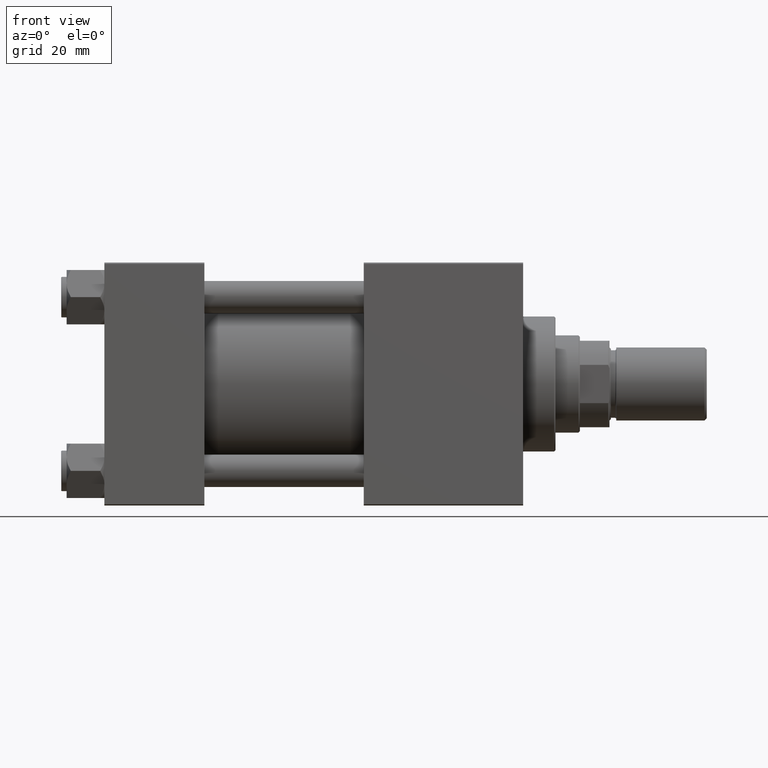
[diagram: clean part render]
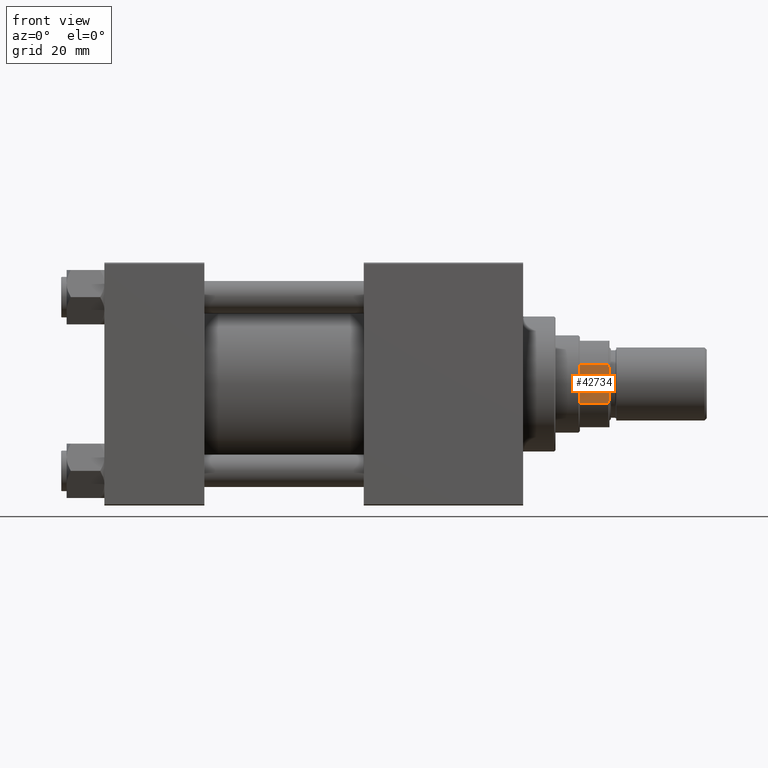
[diagram: same view with one face highlighted and labeled with its STEP entity id]
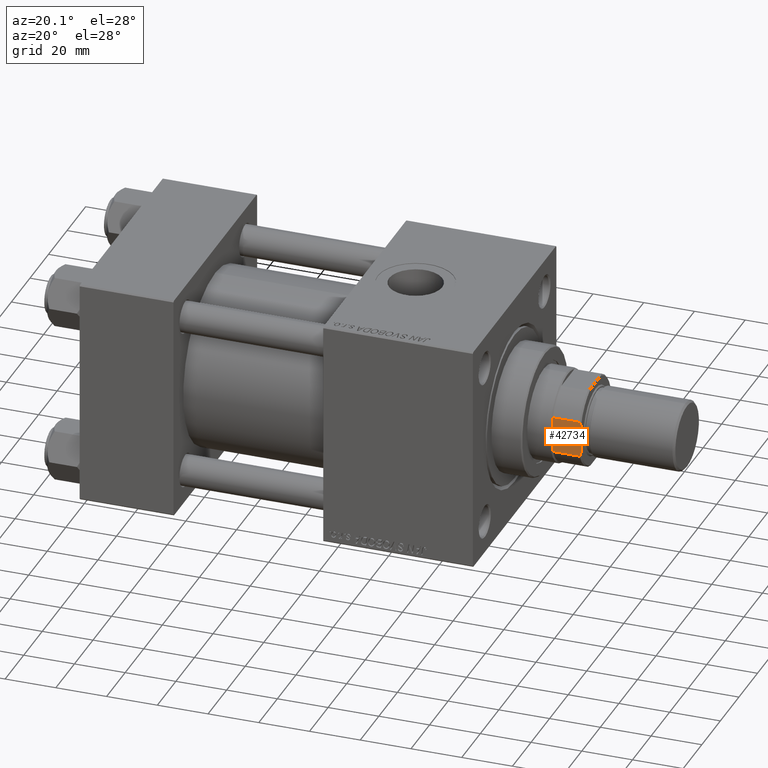
[diagram: same view with one face highlighted and labeled with its STEP entity id]
A machine part, front view. The second image highlights one B-rep face of the part: STEP entity #42734.
A second angle (auxiliary view) of the same face is appended — the face is thin or edge-on in the first view.
In plain terms, the highlighted planar face has unit normal (0, 1, 0).
Its self-contained STEP definition (entity closure, byte-faithful):
#720 = B_SPLINE_CURVE_WITH_KNOTS ( 'NONE', 3,
 ( #11576, #4153, #12341, #35437 ),
 .UNSPECIFIED., .F., .F.,
 ( 4, 4 ),
 ( 0.000000000000000000, 0.001434143729550888804 ),
 .UNSPECIFIED. ) ;
#4153 = CARTESIAN_POINT ( 'NONE',  ( -6.645462757301175749, 16.00000000000000000, 149.6795515649600361 ) ) ;
#5225 = CARTESIAN_POINT ( 'NONE',  ( -5.744562646538198258, 16.00000000000000000, 150.0000000000000284 ) ) ;
#5580 = CARTESIAN_POINT ( 'NONE',  ( -7.088723439378916247, 16.00000000000000000, -0.001000000000001000089 ) ) ;
#5717 = CARTESIAN_POINT ( 'NONE',  ( 7.088723439378916247, 16.00000000000000355, 139.0000000000000000 ) ) ;
#6816 = CARTESIAN_POINT ( 'NONE',  ( 6.645462757301082490, 16.00000000000000000, 149.6795515649600361 ) ) ;
#7289 = LINE ( 'NONE', #45499, #44798 ) ;
#8554 = VERTEX_POINT ( 'NONE', #27053 ) ;
#8664 = EDGE_CURVE ( 'NONE', #9727, #44068, #47795, .T. ) ;
#9727 = VERTEX_POINT ( 'NONE', #5717 ) ;
#9856 = DIRECTION ( 'NONE',  ( -0.000000000000000000, -0.000000000000000000, 1.000000000000000000 ) ) ;
#9969 = VECTOR ( 'NONE', #9856, 1000.000000000000000 ) ;
#10660 = CARTESIAN_POINT ( 'NONE',  ( 7.088723439378914470, 16.00000000000000000, 149.4999999999999716 ) ) ;
#11317 = CARTESIAN_POINT ( 'NONE',  ( 7.088723439378914470, 16.00000000000000000, 149.4999999999999716 ) ) ;
#11576 = CARTESIAN_POINT ( 'NONE',  ( -7.088723439378916247, 16.00000000000000000, 149.5000000000000853 ) ) ;
#11589 = DIRECTION ( 'NONE',  ( 0.000000000000000000, -0.000000000000000000, -1.000000000000000000 ) ) ;
#12341 = CARTESIAN_POINT ( 'NONE',  ( -6.197659614356170188, 16.00000000000000000, 149.8468915343184449 ) ) ;
#12357 = FACE_OUTER_BOUND ( 'NONE', #24011, .T. ) ;
#13783 = VERTEX_POINT ( 'NONE', #5225 ) ;
#15526 = ORIENTED_EDGE ( 'NONE', *, *, #8664, .F. ) ;
#16851 = VECTOR ( 'NONE', #46726, 1000.000000000000000 ) ;
#17701 = EDGE_CURVE ( 'NONE', #19160, #8554, #49121, .T. ) ;
#17872 = DIRECTION ( 'NONE',  ( -0.000000000000000000, -0.000000000000000000, 1.000000000000000000 ) ) ;
#18645 = ORIENTED_EDGE ( 'NONE', *, *, #48297, .T. ) ;
#19160 = VERTEX_POINT ( 'NONE', #41107 ) ;
#19692 = EDGE_CURVE ( 'NONE', #22849, #44068, #34959, .T. ) ;
#20482 = ORIENTED_EDGE ( 'NONE', *, *, #19692, .T. ) ;
#20570 = PLANE ( 'NONE',  #40521 ) ;
#21401 = CARTESIAN_POINT ( 'NONE',  ( 7.088723439378914470, 16.00000000000000000, -0.001000000000001000089 ) ) ;
#21968 = EDGE_CURVE ( 'NONE', #22849, #13783, #39317, .T. ) ;
#22849 = VERTEX_POINT ( 'NONE', #39518 ) ;
#24011 = EDGE_LOOP ( 'NONE', ( #40724, #20482, #15526, #18645, #30889, #42489 ) ) ;
#27053 = CARTESIAN_POINT ( 'NONE',  ( -7.088723439378916247, 16.00000000000000000, 149.5000000000000853 ) ) ;
#28003 = CARTESIAN_POINT ( 'NONE',  ( -16.00000000000000355, 16.00000000000000000, 150.0000000000000284 ) ) ;
#30889 = ORIENTED_EDGE ( 'NONE', *, *, #17701, .T. ) ;
#34244 = EDGE_CURVE ( 'NONE', #8554, #13783, #720, .T. ) ;
#34959 = B_SPLINE_CURVE_WITH_KNOTS ( 'NONE', 3,
 ( #38342, #49358, #6816, #10660 ),
 .UNSPECIFIED., .F., .F.,
 ( 4, 4 ),
 ( 8.673617379884035472E-19, 0.001434143729551221871 ),
 .UNSPECIFIED. ) ;
#34963 = CARTESIAN_POINT ( 'NONE',  ( -16.00000000000000355, 16.00000000000000000, 150.0000000000000284 ) ) ;
#35437 = CARTESIAN_POINT ( 'NONE',  ( -5.744562646538198258, 16.00000000000000000, 150.0000000000000284 ) ) ;
#36477 = VECTOR ( 'NONE', #17872, 1000.000000000000000 ) ;
#38342 = CARTESIAN_POINT ( 'NONE',  ( 5.744562646537880291, 16.00000000000000000, 150.0000000000000284 ) ) ;
#39317 = LINE ( 'NONE', #34963, #16851 ) ;
#39518 = CARTESIAN_POINT ( 'NONE',  ( 5.744562646537880291, 16.00000000000000000, 150.0000000000000284 ) ) ;
#40521 = AXIS2_PLACEMENT_3D ( 'NONE', #28003, #46704, #11589 ) ;
#40724 = ORIENTED_EDGE ( 'NONE', *, *, #21968, .F. ) ;
#41107 = CARTESIAN_POINT ( 'NONE',  ( -7.088723439378917135, 16.00000000000000000, 139.0000000000000000 ) ) ;
#42406 = DIRECTION ( 'NONE',  ( -1.000000000000000000, -0.000000000000000000, -0.000000000000000000 ) ) ;
#42489 = ORIENTED_EDGE ( 'NONE', *, *, #34244, .T. ) ;
#42734 = ADVANCED_FACE ( 'NONE', ( #12357 ), #20570, .F. ) ;
#44068 = VERTEX_POINT ( 'NONE', #11317 ) ;
#44798 = VECTOR ( 'NONE', #42406, 1000.000000000000000 ) ;
#45499 = CARTESIAN_POINT ( 'NONE',  ( -16.00000000000000355, 16.00000000000000000, 139.0000000000000000 ) ) ;
#46704 = DIRECTION ( 'NONE',  ( 0.000000000000000000, -1.000000000000000000, 0.000000000000000000 ) ) ;
#46726 = DIRECTION ( 'NONE',  ( -1.000000000000000000, -0.000000000000000000, -0.000000000000000000 ) ) ;
#47795 = LINE ( 'NONE', #21401, #9969 ) ;
#48297 = EDGE_CURVE ( 'NONE', #9727, #19160, #7289, .T. ) ;
#49121 = LINE ( 'NONE', #5580, #36477 ) ;
#49358 = CARTESIAN_POINT ( 'NONE',  ( 6.197659614355959690, 16.00000000000000000, 149.8468915343184165 ) ) ;